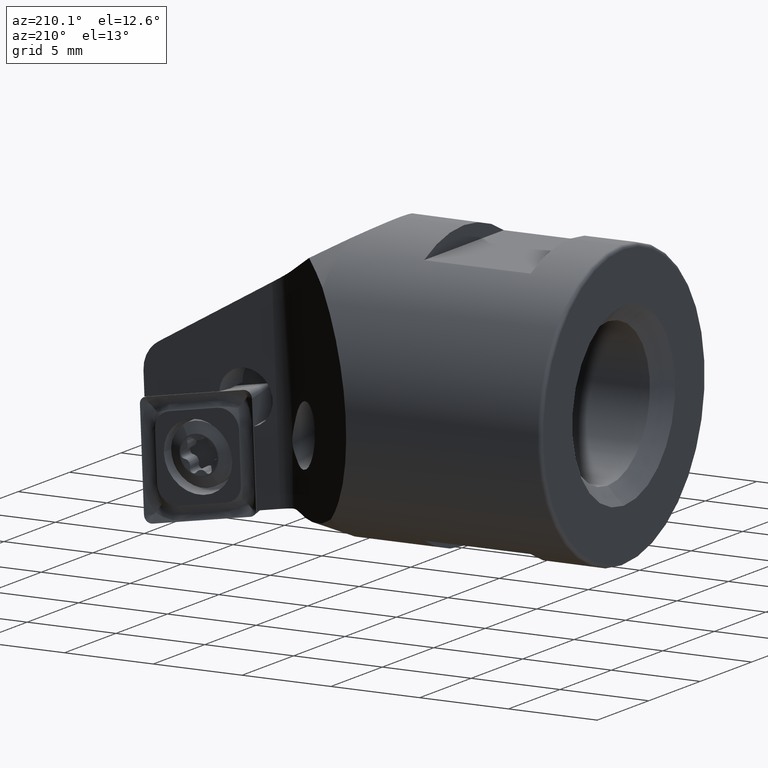
[diagram: clean part render]
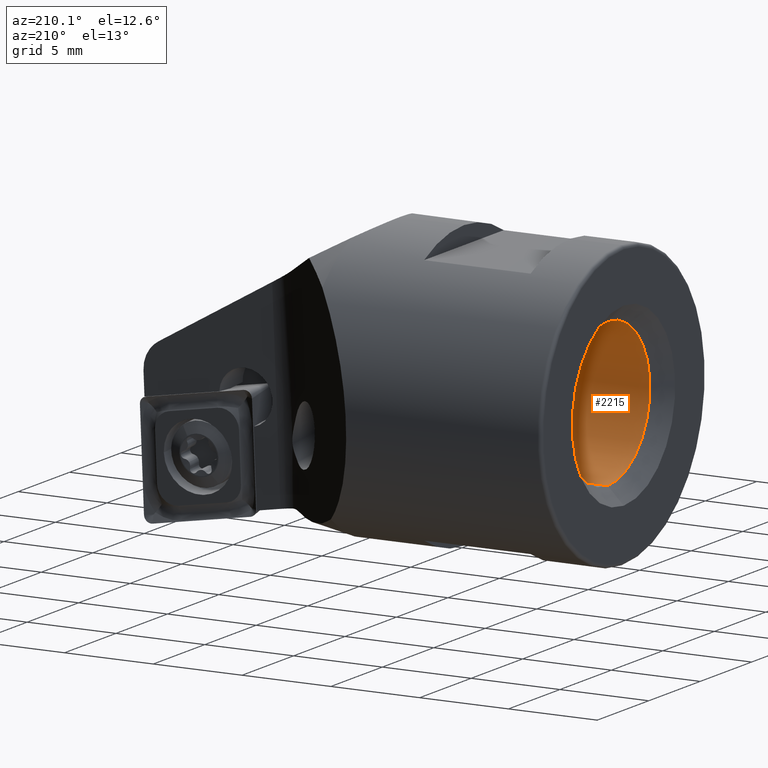
[diagram: same view with one face highlighted and labeled with its STEP entity id]
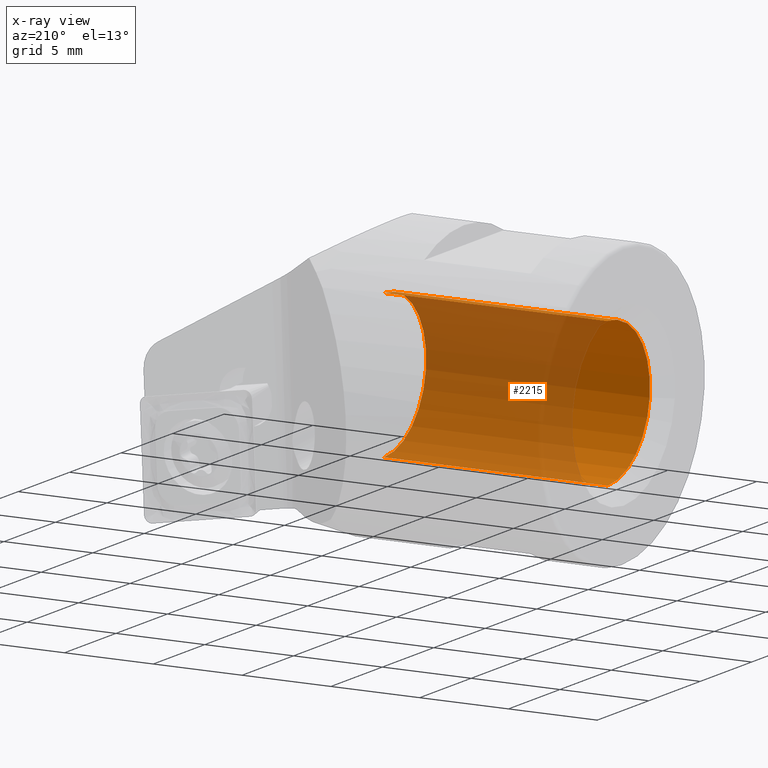
[diagram: x-ray of the same camera — body ghosted, the highlighted face saturated]
A machine part, auxiliary view. The second image highlights one B-rep face of the part: STEP entity #2215.
The next image is the same camera in x-ray: the body ghosted, the highlighted face saturated — about 73% of this face is hidden behind the body in this view.
In plain terms, the highlighted cylindrical surface (partial cylindrical patch) has radius 4.1 mm, axis along (-1, -0, -0).
Its self-contained STEP definition (entity closure, byte-faithful):
#98 = CARTESIAN_POINT ( 'NONE',  ( -13.50000000000000000, 0.0000000000000000000, 8.875000000000000000 ) ) ;
#259 = EDGE_CURVE ( 'NONE', #1367, #2482, #655, .T. ) ;
#351 = EDGE_CURVE ( 'NONE', #1367, #3489, #2826, .T. ) ;
#414 = CARTESIAN_POINT ( 'NONE',  ( -13.50000000000000000, 5.021051876504147400E-016, 4.774999999999999500 ) ) ;
#565 = DIRECTION ( 'NONE',  ( -1.000000000000000000, -0.0000000000000000000, -0.0000000000000000000 ) ) ;
#655 = LINE ( 'NONE', #3518, #3783 ) ;
#684 = EDGE_CURVE ( 'NONE', #3489, #729, #3269, .T. ) ;
#729 = VERTEX_POINT ( 'NONE', #1958 ) ;
#731 = EDGE_CURVE ( 'NONE', #2482, #729, #3694, .T. ) ;
#861 = DIRECTION ( 'NONE',  ( 0.0000000000000000000, 0.0000000000000000000, 1.000000000000000000 ) ) ;
#883 = DIRECTION ( 'NONE',  ( -1.000000000000000000, -0.0000000000000000000, -0.0000000000000000000 ) ) ;
#1217 = FACE_OUTER_BOUND ( 'NONE', #1643, .T. ) ;
#1230 = CARTESIAN_POINT ( 'NONE',  ( -26.09999999999999800, 0.0000000000000000000, 8.875000000000000000 ) ) ;
#1367 = VERTEX_POINT ( 'NONE', #414 ) ;
#1415 = AXIS2_PLACEMENT_3D ( 'NONE', #3360, #1717, #3853 ) ;
#1549 = CYLINDRICAL_SURFACE ( 'NONE', #1415, 4.099999999999999600 ) ;
#1643 = EDGE_LOOP ( 'NONE', ( #4477, #3808, #2935, #3958 ) ) ;
#1717 = DIRECTION ( 'NONE',  ( -1.000000000000000000, -0.0000000000000000000, -0.0000000000000000000 ) ) ;
#1807 = AXIS2_PLACEMENT_3D ( 'NONE', #98, #3395, #861 ) ;
#1958 = CARTESIAN_POINT ( 'NONE',  ( -26.09999999999999800, 0.0000000000000000000, 12.97499999999999800 ) ) ;
#2215 = ADVANCED_FACE ( 'NONE', ( #1217 ), #1549, .F. ) ;
#2428 = AXIS2_PLACEMENT_3D ( 'NONE', #1230, #883, #3037 ) ;
#2467 = CARTESIAN_POINT ( 'NONE',  ( -26.09999999999999800, 5.021051876504147400E-016, 4.774999999999999500 ) ) ;
#2482 = VERTEX_POINT ( 'NONE', #2467 ) ;
#2826 = CIRCLE ( 'NONE', #1807, 4.099999999999999600 ) ;
#2935 = ORIENTED_EDGE ( 'NONE', *, *, #731, .T. ) ;
#3037 = DIRECTION ( 'NONE',  ( 0.0000000000000000000, 0.0000000000000000000, 1.000000000000000000 ) ) ;
#3269 = LINE ( 'NONE', #4514, #4030 ) ;
#3360 = CARTESIAN_POINT ( 'NONE',  ( -28.59735948021380400, 0.0000000000000000000, 8.875000000000000000 ) ) ;
#3395 = DIRECTION ( 'NONE',  ( -1.000000000000000000, -0.0000000000000000000, -0.0000000000000000000 ) ) ;
#3489 = VERTEX_POINT ( 'NONE', #3955 ) ;
#3518 = CARTESIAN_POINT ( 'NONE',  ( -28.59735948021380400, 5.021051876504147400E-016, 4.774999999999999500 ) ) ;
#3694 = CIRCLE ( 'NONE', #2428, 4.099999999999999600 ) ;
#3783 = VECTOR ( 'NONE', #565, 1000.000000000000000 ) ;
#3808 = ORIENTED_EDGE ( 'NONE', *, *, #259, .T. ) ;
#3853 = DIRECTION ( 'NONE',  ( 0.0000000000000000000, 0.0000000000000000000, 1.000000000000000000 ) ) ;
#3955 = CARTESIAN_POINT ( 'NONE',  ( -13.50000000000000000, 0.0000000000000000000, 12.97499999999999800 ) ) ;
#3958 = ORIENTED_EDGE ( 'NONE', *, *, #684, .F. ) ;
#4030 = VECTOR ( 'NONE', #4153, 1000.000000000000000 ) ;
#4153 = DIRECTION ( 'NONE',  ( -1.000000000000000000, -0.0000000000000000000, -0.0000000000000000000 ) ) ;
#4477 = ORIENTED_EDGE ( 'NONE', *, *, #351, .F. ) ;
#4514 = CARTESIAN_POINT ( 'NONE',  ( -28.59735948021380400, 0.0000000000000000000, 12.97499999999999800 ) ) ;